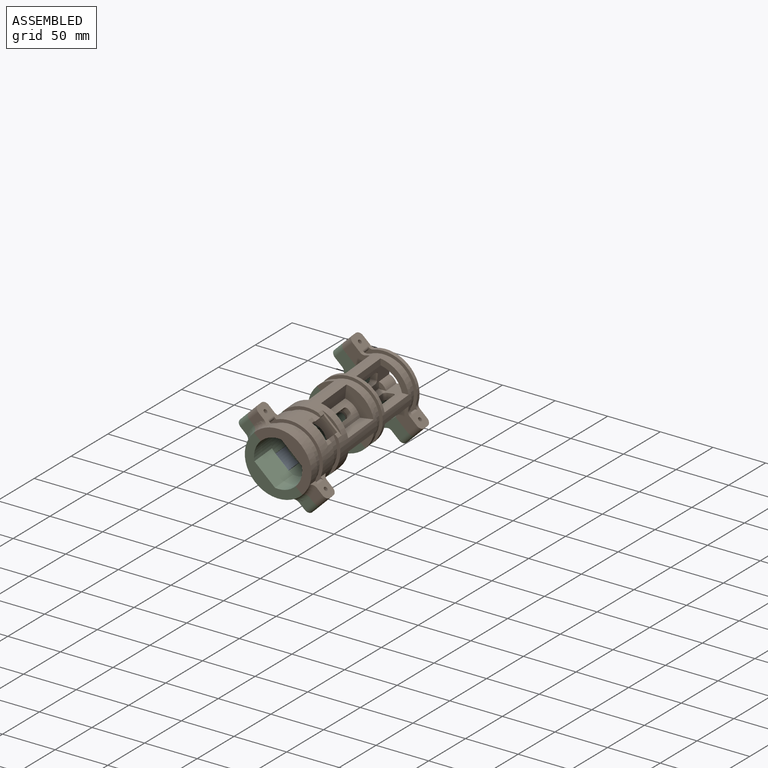
[diagram: assembled view]
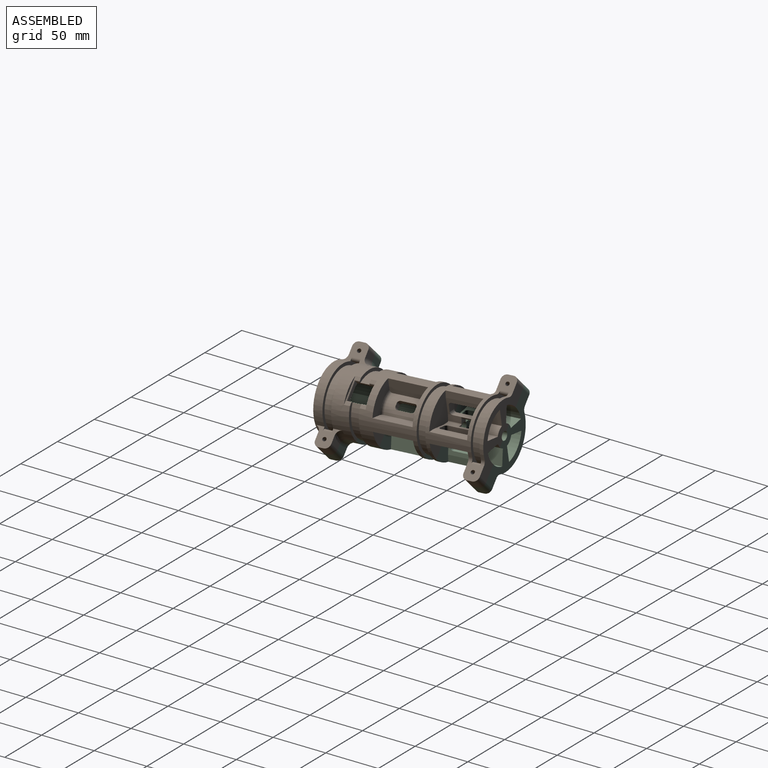
[diagram: assembled view, second angle]
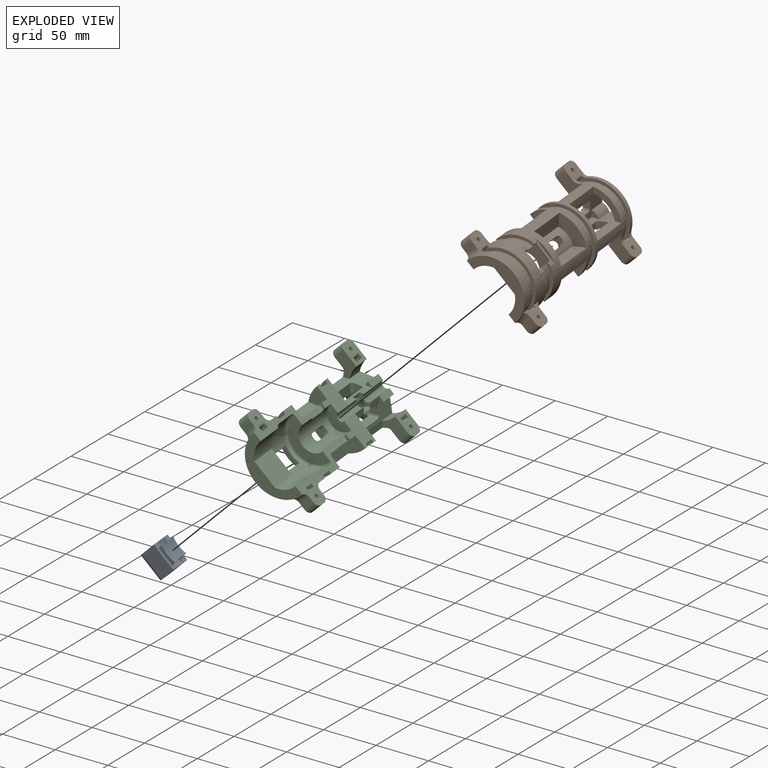
[diagram: exploded view]
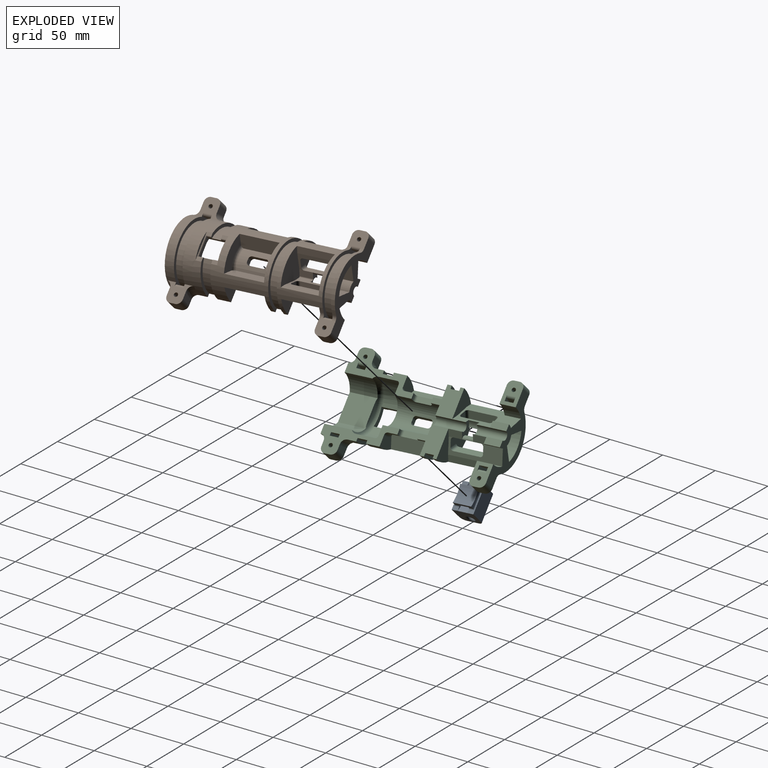
[diagram: exploded view, second angle]
ASSEMBLY  parts=3 mates=2
PART A: 27 faces, bbox 25x20x25 mm
  f0: plane 17x3.81mm, normal (-1,0,0), area 59.6mm2, adj f2,f10,f12,f13,f14,f15,f19,f22
  f1: plane 17x3.81mm, normal (1,0,0), area 59.6mm2, adj f2,f10,f12,f13,f14,f15,f20,f23
  f2: cylinder r=24.68mm len=17mm, axis (0,1,0), area 284mm2, adj f0,f1,f14,f15
  f3: plane 25x15mm, normal (0,-1,0), area 375mm2, adj f6,f8,f9,f18
  f4: plane 25x15mm, normal (0,1,0), area 375mm2, adj f5,f6,f8,f17
  f5: plane 25x5.5mm, normal (0,0,-1), area 45.6mm2, adj f4,f6,f8,f12,f19,f20,f21
  f6: plane 20x20mm, normal (1,0,0), area 285.4mm2, adj f3,f4,f5,f7,f9,f11,f17,f18
  f7: plane 25x10mm, normal (0,0,1), area 250mm2, adj f6,f8,f17,f18
  f8: plane 20x20mm, normal (-1,0,0), area 285.4mm2, adj f3,f4,f5,f7,f9,f11,f17,f18
  f9: plane 25x5.5mm, normal (0,0,-1), area 45.6mm2, adj f3,f6,f8,f13,f22,f23,f24
  f10: cylinder r=27.75mm len=16.39mm, axis (0,-1,0), area 149.7mm2, adj f0,f1,f12,f13
  f11: cylinder r=30.75mm len=25mm, axis (0,-1,0), area 231.7mm2, adj f6,f8,f12,f13
  f12: plane 25x4.24mm, normal (0,-1,0), area 57.4mm2, adj f0,f1,f5,f10,f11,f19,f20
  f13: plane 25x4.24mm, normal (0,1,0), area 57.4mm2, adj f0,f1,f9,f10,f11,f22,f23
  f14: plane 16.39x3.81mm, normal (0,1,0), area 47.1mm2, adj f0,f1,f2,f21
  f15: plane 16.39x3.81mm, normal (0,-1,0), area 47.1mm2, adj f0,f1,f2,f24
  f16: cylinder r=3.25mm len=20mm, axis (1,0,0), area 408.4mm2, adj f25,f26
  f17: cylinder r=5mm len=25mm, axis (-1,0,0), area 196.3mm2, adj f4,f6,f7,f8
  f18: cylinder r=5mm len=25mm, axis (1,0,0), area 196.3mm2, adj f3,f6,f7,f8
  f19: cylinder r=1mm len=5mm, axis (0,-1,0), area 6.9mm2, adj f0,f5,f12,f21
  f20: cylinder r=1mm len=5mm, axis (0,1,0), area 6.9mm2, adj f1,f5,f12,f21
  f21: cylinder r=1mm len=18.39mm, axis (1,0,0), area 26.9mm2, adj f5,f14,f19,f20
  f22: cylinder r=1mm len=5mm, axis (0,-1,0), area 6.9mm2, adj f0,f9,f13,f24
  f23: cylinder r=1mm len=5mm, axis (0,1,0), area 6.9mm2, adj f1,f9,f13,f24
  f24: cylinder r=1mm len=18.39mm, axis (-1,0,0), area 26.9mm2, adj f9,f15,f22,f23
  f25: torus R=5.75mm, axis (-1,0,0), area 102.6mm2, adj f6,f16
  f26: torus R=5.75mm, axis (-1,0,0), area 102.6mm2, adj f8,f16
PART B: 191 faces, bbox 73.8x157.7x73.8 mm
  f0: cylinder r=30.75mm len=53.5mm, axis (0,1,0), area 2317.6mm2, adj f1,f2,f11,f20,f21,f26,f27,f29
  f1: plane 35.89x18.92mm, normal (0.71,0,0.71), area 433.1mm2, adj f0,f22,f28,f33,f35,f47,f55,f57
  f2: plane 35.89x18.92mm, normal (0.71,0,0.71), area 433.1mm2, adj f0,f22,f25,f34,f35,f47,f53,f65
  f3: plane 12.5x6.53mm, normal (1,0,0), area 81.6mm2, adj f5,f9,f56,f183,f187
  f4: plane 12.5x5.52mm, normal (-1,0,0), area 69mm2, adj f8,f10,f51,f183,f187
  f5: plane 27.5x4.24mm, normal (0.71,0,0.71), area 93mm2, adj f3,f6,f9,f48,f56,f187
  f6: cylinder r=4mm len=27.5mm, axis (0,1,0), area 345.6mm2, adj f5,f7,f48,f187
  f7: plane 27.5x4.24mm, normal (0.71,0,0.71), area 93mm2, adj f6,f38,f48,f53,f54,f187
  f8: cylinder r=1mm len=12.5mm, axis (0,1,0), area 19.7mm2, adj f4,f49,f51,f187
  f9: cylinder r=10mm len=20.5mm, axis (0,1,0), area 72.3mm2, adj f3,f5,f36,f48,f56,f182
  f10: cylinder r=10mm len=50mm, axis (0,1,0), area 145.3mm2, adj f4,f39,f41,f48,f49,f51,f60,f171
  f11: plane 17.66x17.66mm, normal (-0.71,0,-0.71), area 37.6mm2, adj f0,f12,f13,f156,f160,f164,f168
  f12: cylinder r=1mm len=5.25mm, axis (0,1,0), area 7.5mm2, adj f11,f16,f160,f168
  f13: cylinder r=1mm len=5.25mm, axis (0,-1,0), area 7.5mm2, adj f11,f18,f160,f164
  f14: cylinder r=30.75mm len=52.49mm, axis (0,1,0), area 631.4mm2, adj f19,f20,f21,f157,f158,f163,f167
  f15: plane 14.75x14.75mm, normal (0,-1,0), area 48.4mm2, adj f16,f18,f67,f160
  f16: plane 17.53x2.87mm, normal (-0.71,0,0.71), area 61.4mm2, adj f12,f15,f17,f67,f76,f159,f166,f167
  f17: plane 14.87x14.87mm, normal (0,1,0), area 51.1mm2, adj f16,f18,f76,f161
  f18: plane 17.53x2.87mm, normal (0.71,0,-0.71), area 61.4mm2, adj f13,f15,f17,f67,f76,f162,f163,f164
  f19: cylinder r=30.75mm len=52.5mm, axis (0,1,0), area 612.2mm2, adj f14,f20,f21,f106,f111,f132,f140,f143
  f20: plane 65.61x23.16mm, normal (0.71,0,0.71), area 668.4mm2, adj f0,f14,f19,f28,f32,f67,f68,f73
  f21: plane 65.61x23.16mm, normal (0.71,0,0.71), area 649.1mm2, adj f0,f14,f19,f25,f32,f67,f68,f71
  f22: cylinder r=30.75mm len=52.49mm, axis (0,1,0), area 1272.7mm2, adj f1,f2,f55,f58,f59,f60,f61,f62
  f23: cylinder r=30.75mm len=39.54mm, axis (0,1,0), area 231.4mm2, adj f48,f123,f144,f146
  f24: cylinder r=24.75mm len=15mm, axis (0,1,0), area 186.7mm2, adj f42,f48,f66,f105
  f25: cylinder r=18mm len=34.5mm, axis (0,1,0), area 279.2mm2, adj f2,f21,f26,f34,f85,f86,f87,f88
  f26: plane 37.08x12.75mm, normal (0.13,0,0.99), area 471.6mm2, adj f0,f25,f34,f97,f100
  f27: plane 37.08x12.75mm, normal (0.99,0,0.13), area 471.6mm2, adj f0,f28,f33,f96,f98
  f28: cylinder r=18mm len=34.5mm, axis (0,1,0), area 279.2mm2, adj f1,f20,f27,f33,f90,f91,f92,f93
  f29: plane 37.08x12.75mm, normal (0.13,0,-0.99), area 471.6mm2, adj f0,f30,f69,f95,f99
  f30: cylinder r=18mm len=34.5mm, axis (0,1,0), area 558.4mm2, adj f29,f31,f69,f77,f78,f79,f80,f81
  f31: plane 37.08x12.75mm, normal (-0.99,0,0.13), area 471.6mm2, adj f0,f30,f69,f95,f99
  f32: plane 37.98x37.98mm, normal (0,-1,0), area 512.2mm2, adj f20,f21,f68,f101
  f33: plane 17.66x17.47mm, normal (0,-1,0), area 180.5mm2, adj f0,f1,f27,f28
  f34: plane 17.66x17.47mm, normal (0,-1,0), area 180.5mm2, adj f0,f2,f25,f26
  f35: plane 22.19x22.19mm, normal (0,-1,0), area 240.3mm2, adj f1,f2,f47,f68
  f36: plane 50.14x14.84mm, normal (0.99,0,0.13), area 416.3mm2, adj f9,f37,f43,f48,f55,f62,f177,f178
  f37: cylinder r=10mm len=4.5mm, axis (0,1,0), area 0.1mm2, adj f36,f55,f57,f184
  f38: cylinder r=10mm len=50mm, axis (0,1,0), area 73.1mm2, adj f7,f42,f48,f53,f54,f65,f171
  f39: plane 50.14x14.84mm, normal (0.13,0,-0.99), area 416.5mm2, adj f10,f44,f48,f58,f60,f169,f170,f172
  f40: cylinder r=10mm len=4.5mm, axis (0,1,0), area 0.1mm2, adj f41,f50,f60,f184
  f41: plane 50.14x14.84mm, normal (-0.99,0,0.13), area 416mm2, adj f10,f40,f44,f48,f59,f60,f177,f178
  f42: plane 50.14x14.84mm, normal (0.13,0,0.99), area 416.3mm2, adj f24,f38,f48,f64,f65,f169,f170,f172
  f43: cylinder r=24.75mm len=15mm, axis (0,1,0), area 186.7mm2, adj f36,f48,f63,f116
  f44: cylinder r=24.75mm len=19.24mm, axis (0,1,0), area 432.1mm2, adj f39,f41,f48,f61
  f45: plane 15x14.9mm, normal (0.71,0,0.71), area 251.1mm2, adj f48,f66,f102,f103,f105,f122,f123,f124
  f46: plane 15x14.9mm, normal (0.71,0,0.71), area 251.1mm2, adj f48,f63,f116,f118,f119,f122,f123,f124
  f47: cylinder r=4mm len=28mm, axis (0,1,0), area 351.9mm2, adj f1,f2,f35,f186
  f48: plane 66.11x66.11mm, normal (0,1,0), area 1155.9mm2, adj f5,f6,f7,f9,f10,f23,f24,f36
  f49: plane 35x5.52mm, normal (0,0,-1), area 164.7mm2, adj f8,f10,f51,f52,f60,f185,f186,f187
  f50: plane 12.5x5.52mm, normal (-1,0,0), area 69mm2, adj f40,f52,f60,f183,f186
  f51: plane 6.53x6.53mm, normal (0,-1,0), area 28.1mm2, adj f4,f8,f10,f49
  f52: cylinder r=1mm len=12.5mm, axis (0,1,0), area 19.7mm2, adj f49,f50,f60,f186
  f53: plane 35x6.53mm, normal (0,0,1), area 189.9mm2, adj f2,f7,f38,f54,f65,f185,f186,f187
  f54: plane 6.53x4.07mm, normal (0,-1,0), area 14.1mm2, adj f7,f38,f53
  f55: plane 27.35x18.76mm, normal (0,1,0), area 256.4mm2, adj f1,f22,f36,f37,f57,f62
  f56: plane 6.53x4.07mm, normal (0,-1,0), area 14.1mm2, adj f3,f5,f9
  f57: plane 12.5x6.53mm, normal (1,0,0), area 81.6mm2, adj f1,f37,f55,f183,f186
  f58: plane 35x6.11mm, normal (0,0,-1), area 213.5mm2, adj f22,f39,f60,f61
  f59: plane 35x6.11mm, normal (-1,0,0), area 213.7mm2, adj f22,f41,f60,f61
  f60: plane 27.36x27.36mm, normal (0,1,0), area 512.7mm2, adj f10,f22,f39,f40,f41,f49,f50,f52
  f61: plane 25.36x25.36mm, normal (0,-1,0), area 201.3mm2, adj f22,f44,f58,f59
  f62: plane 35x6.11mm, normal (1,0,0), area 213.5mm2, adj f22,f36,f55,f63
  f63: plane 23.84x19.87mm, normal (0,-1,0), area 231.9mm2, adj f22,f43,f46,f62,f116,f117,f145,f151
  f64: plane 35x6.11mm, normal (0,0,1), area 213.7mm2, adj f22,f42,f65,f66
  f65: plane 27.36x18.76mm, normal (0,1,0), area 256.4mm2, adj f2,f22,f38,f42,f53,f64
  f66: plane 23.84x19.87mm, normal (0,-1,0), area 231.9mm2, adj f22,f24,f45,f64,f104,f105,f147,f148
  f67: cylinder r=24.75mm len=42.25mm, axis (0,1,0), area 1078.7mm2, adj f15,f16,f18,f20,f21,f76,f101
  f68: cylinder r=13mm len=41.5mm, axis (0,1,0), area 1427.8mm2, adj f1,f2,f20,f21,f32,f35,f77,f78
  f69: plane 26.11x26.11mm, normal (0,-1,0), area 361.1mm2, adj f0,f29,f30,f31
  f70: plane 11.49x11.49mm, normal (0,1,0), area 19.1mm2, adj f74,f76
  f71: cylinder r=22.25mm len=25.67mm, axis (0,1,0), area 538.3mm2, adj f21,f74,f75,f76
  f72: cylinder r=30.75mm len=42.29mm, axis (0,1,0), area 611.6mm2, adj f75,f106,f111,f131
  f73: cylinder r=22.25mm len=25.67mm, axis (0,1,0), area 538.3mm2, adj f20,f74,f75,f76
  f74: plane 26.09x18.92mm, normal (0.71,0,0.71), area 655.9mm2, adj f70,f71,f73,f75,f76
  f75: plane 52.5x52.5mm, normal (0,-1,0), area 783.4mm2, adj f20,f21,f71,f72,f73,f74,f141,f142
  f76: torus R=19.75mm, axis (0,-1,0), area 429.1mm2, adj f16,f17,f18,f20,f21,f67,f70,f71
  f77: cylinder r=2.5mm len=5.71mm, axis (0.71,0,0.71), area 20mm2, adj f30,f68,f78,f84
  f78: plane 5.67x5.67mm, normal (0,1,0), area 15mm2, adj f30,f68,f77,f79
  f79: cylinder r=2.5mm len=5.71mm, axis (0.71,0,0.71), area 20mm2, adj f30,f68,f78,f80
  f80: plane 13x3.66mm, normal (-0.71,0,0.71), area 67.3mm2, adj f30,f68,f79,f81
  f81: cylinder r=2.5mm len=5.71mm, axis (0.71,0,0.71), area 20mm2, adj f30,f68,f80,f82
  f82: plane 5.67x5.67mm, normal (0,-1,0), area 15mm2, adj f30,f68,f81,f83
  f83: cylinder r=2.5mm len=5.71mm, axis (0.71,0,0.71), area 20mm2, adj f30,f68,f82,f84
  f84: plane 13x3.66mm, normal (0.71,0,-0.71), area 67.3mm2, adj f30,f68,f77,f83
  f85: cylinder r=2.5mm len=5.71mm, axis (0.71,0,-0.71), area 20mm2, adj f25,f68,f86,f89
  f86: plane 4.66x4.55mm, normal (0,1,0), area 7.5mm2, adj f21,f25,f68,f85
  f87: plane 4.66x4.55mm, normal (0,-1,0), area 7.5mm2, adj f2,f25,f68,f88
  f88: cylinder r=2.5mm len=5.71mm, axis (0.71,0,-0.71), area 20mm2, adj f25,f68,f87,f89
  f89: plane 13x3.66mm, normal (0.71,0,0.71), area 67.3mm2, adj f25,f68,f85,f88
  f90: plane 4.66x4.55mm, normal (0,-1,0), area 7.5mm2, adj f1,f28,f68,f91
  f91: cylinder r=2.5mm len=5.71mm, axis (0.71,0,-0.71), area 20mm2, adj f28,f68,f90,f94
  f92: cylinder r=2.5mm len=5.71mm, axis (0.71,0,-0.71), area 20mm2, adj f28,f68,f93,f94
  f93: plane 4.66x4.55mm, normal (0,1,0), area 7.5mm2, adj f20,f28,f68,f92
  f94: plane 13x3.66mm, normal (0.71,0,0.71), area 67.3mm2, adj f28,f68,f91,f92
  f95: plane 25.77x25.77mm, normal (0,1,0), area 306.9mm2, adj f0,f29,f31,f99
  f96: plane 17.32x15.7mm, normal (0,1,0), area 153.5mm2, adj f0,f20,f27,f98
  f97: plane 17.32x15.7mm, normal (0,1,0), area 153.5mm2, adj f0,f21,f26,f100
  f98: torus R=20.5mm, axis (0,-1,0), area 41.7mm2, adj f20,f27,f28,f96
  f99: torus R=20.5mm, axis (0,-1,0), area 83.5mm2, adj f29,f30,f31,f95
  f100: torus R=20.5mm, axis (0,-1,0), area 41.7mm2, adj f21,f25,f26,f97
  f101: torus R=22.25mm, axis (0,-1,0), area 294.1mm2, adj f20,f21,f32,f67
  f102: cylinder r=1.88mm len=11.14mm, axis (0.71,0,0.71), area 141.4mm2, adj f45,f104
  f103: plane 8.49x8.49mm, normal (-0.71,0,0.71), area 60mm2, adj f45,f104,f148,f149
  f104: plane 15x10.11mm, normal (-0.71,0,-0.71), area 189.4mm2, adj f48,f66,f102,f103,f123,f124,f136,f144
  f105: plane 15x1.38mm, normal (0.71,0,-0.71), area 29.3mm2, adj f24,f45,f48,f66
  f106: plane 25.64x12.99mm, normal (-0.71,0,-0.71), area 222.9mm2, adj f19,f72,f107,f108,f109,f110,f131,f132
  f107: plane 13.49x12.02mm, normal (0,-1,0), area 68.2mm2, adj f21,f106,f142,f152
  f108: plane 8.49x8.49mm, normal (-0.71,0,0.71), area 60mm2, adj f21,f106,f152,f153
  f109: plane 13.49x12.02mm, normal (0,1,0), area 68.2mm2, adj f21,f106,f143,f153
  f110: cylinder r=1.88mm len=11.14mm, axis (0.71,0,0.71), area 141.4mm2, adj f21,f106
  f111: plane 25.64x12.99mm, normal (-0.71,0,-0.71), area 223mm2, adj f19,f72,f112,f113,f114,f115,f131,f132
  f112: plane 13.49x12.02mm, normal (0,1,0), area 68.2mm2, adj f20,f111,f140,f154
  f113: plane 8.49x8.49mm, normal (0.71,0,-0.71), area 60mm2, adj f20,f111,f154,f155
  f114: plane 13.49x12.02mm, normal (0,-1,0), area 68.2mm2, adj f20,f111,f141,f155
  f115: cylinder r=1.88mm len=11.14mm, axis (0.71,0,0.71), area 141.4mm2, adj f20,f111
  f116: plane 15x1.38mm, normal (-0.71,0,0.71), area 29.3mm2, adj f43,f46,f48,f63
  f117: plane 15x10.11mm, normal (-0.71,0,-0.71), area 189.4mm2, adj f48,f63,f118,f119,f123,f124,f137,f145
  f118: plane 8.49x8.49mm, normal (0.71,0,-0.71), area 60mm2, adj f46,f117,f150,f151
  f119: cylinder r=1.88mm len=11.14mm, axis (0.71,0,0.71), area 141.4mm2, adj f46,f117
  f120: cylinder r=30.75mm len=8mm, axis (0,-1,0), area 52.8mm2, adj f123,f124,f137,f138
  f121: cylinder r=30.75mm len=8mm, axis (0,-1,0), area 52.8mm2, adj f123,f124,f136,f139
  f122: cylinder r=27.75mm len=47.37mm, axis (0,-1,0), area 697.4mm2, adj f45,f46,f123,f124
  f123: plane 54.46x54.46mm, normal (0,-1,0), area 286.8mm2, adj f23,f45,f46,f104,f117,f120,f121,f122
  f124: plane 54.46x54.46mm, normal (0,1,0), area 286.8mm2, adj f22,f45,f46,f104,f117,f120,f121,f122
  f125: cylinder r=27.75mm len=47.37mm, axis (0,1,0), area 697.4mm2, adj f1,f2,f126,f127
  f126: plane 52.49x52.49mm, normal (0,1,0), area 275.7mm2, adj f0,f1,f2,f125
  f127: plane 52.49x52.49mm, normal (0,-1,0), area 275.7mm2, adj f1,f2,f22,f125
  f128: cylinder r=30.75mm len=8mm, axis (0,1,0), area 71.3mm2, adj f20,f131,f132,f133
  f129: cylinder r=30.75mm len=8mm, axis (0,1,0), area 52.8mm2, adj f131,f132,f134,f135
  f130: cylinder r=27.75mm len=47.37mm, axis (0,1,0), area 697.4mm2, adj f20,f21,f131,f132
  f131: plane 54.47x52.77mm, normal (0,1,0), area 282.6mm2, adj f20,f21,f72,f106,f111,f128,f129,f130
  f132: plane 54.47x52.77mm, normal (0,-1,0), area 282.6mm2, adj f19,f20,f21,f106,f111,f128,f129,f130
  f133: cylinder r=2.5mm len=8mm, axis (0,1,0), area 37.2mm2, adj f111,f128,f131,f132
  f134: cylinder r=2.5mm len=8mm, axis (0,1,0), area 37.2mm2, adj f106,f129,f131,f132
  f135: cylinder r=2.5mm len=8mm, axis (0,1,0), area 29.9mm2, adj f21,f129,f131,f132
  f136: cylinder r=2.5mm len=8mm, axis (0,-1,0), area 37.2mm2, adj f104,f121,f123,f124
  f137: cylinder r=2.5mm len=8mm, axis (0,-1,0), area 37.2mm2, adj f117,f120,f123,f124
  f138: cylinder r=2.5mm len=8mm, axis (0,-1,0), area 29.9mm2, adj f46,f120,f123,f124
  f139: cylinder r=2.5mm len=8mm, axis (0,-1,0), area 29.9mm2, adj f45,f121,f123,f124
  f140: torus R=35.75mm, axis (0,1,0), area 94.8mm2, adj f19,f20,f111,f112
  f141: torus R=35.75mm, axis (0,-1,0), area 94.6mm2, adj f20,f75,f111,f114
  f142: torus R=35.75mm, axis (0,-1,0), area 94.6mm2, adj f21,f75,f106,f107
  f143: torus R=35.75mm, axis (0,1,0), area 94.8mm2, adj f19,f21,f106,f109
  f144: cylinder r=5mm len=4.96mm, axis (0,1,0), area 18.8mm2, adj f23,f48,f104,f123
  f145: cylinder r=5mm len=4.96mm, axis (0,1,0), area 18.8mm2, adj f22,f63,f117,f124
  f146: cylinder r=5mm len=4.96mm, axis (0,1,0), area 18.8mm2, adj f23,f48,f117,f123
  f147: cylinder r=5mm len=4.96mm, axis (0,1,0), area 18.8mm2, adj f22,f66,f104,f124
  f148: cylinder r=5mm len=12.02mm, axis (0.71,0,0.71), area 94.2mm2, adj f45,f66,f103,f104
  f149: cylinder r=5mm len=12.02mm, axis (-0.71,0,-0.71), area 94.2mm2, adj f45,f48,f103,f104
  f150: cylinder r=5mm len=12.02mm, axis (0.71,0,0.71), area 94.2mm2, adj f46,f48,f117,f118
  f151: cylinder r=5mm len=12.02mm, axis (-0.71,0,-0.71), area 94.2mm2, adj f46,f63,f117,f118
  f152: cylinder r=5mm len=12.02mm, axis (0.71,0,0.71), area 94.2mm2, adj f21,f106,f107,f108
  f153: cylinder r=5mm len=12.02mm, axis (0.71,0,0.71), area 94.2mm2, adj f21,f106,f108,f109
  f154: cylinder r=5mm len=12.02mm, axis (-0.71,0,-0.71), area 94.2mm2, adj f20,f111,f112,f113
  f155: cylinder r=5mm len=12.02mm, axis (-0.71,0,-0.71), area 94.2mm2, adj f20,f111,f113,f114
  f156: plane 17.66x17.66mm, normal (0,-1,0), area 44.5mm2, adj f0,f11
  f157: plane 17.66x17.66mm, normal (0,1,0), area 44.5mm2, adj f14,f158
  f158: plane 17.66x17.66mm, normal (-0.71,0,-0.71), area 37.6mm2, adj f14,f157,f159,f161,f162,f163,f167
  f159: cylinder r=1mm len=5.25mm, axis (0,1,0), area 7.5mm2, adj f16,f158,f161,f167
  f160: cylinder r=1mm len=14.14mm, axis (-0.71,0,0.71), area 28.3mm2, adj f11,f12,f13,f15
  f161: cylinder r=1mm len=14.14mm, axis (0.71,0,-0.71), area 28.3mm2, adj f17,f158,f159,f162
  f162: cylinder r=1mm len=5.25mm, axis (0,-1,0), area 7.5mm2, adj f18,f158,f161,f163
  f163: plane 35.19x11.13mm, normal (0,1,0), area 108.6mm2, adj f14,f18,f21,f158,f162,f165
  f164: plane 35.19x11.13mm, normal (0,-1,0), area 108.6mm2, adj f0,f11,f13,f18,f21,f165
  f165: cylinder r=27.75mm len=32.29mm, axis (0,1,0), area 314.6mm2, adj f18,f21,f163,f164
  f166: cylinder r=27.75mm len=32.29mm, axis (0,1,0), area 314.6mm2, adj f16,f20,f167,f168
  f167: plane 35.19x11.13mm, normal (0,1,0), area 108.6mm2, adj f14,f16,f20,f158,f159,f166
  f168: plane 35.19x11.13mm, normal (0,-1,0), area 108.6mm2, adj f0,f11,f12,f16,f20,f166
  f169: plane 8.29x5.92mm, normal (0,1,0), area 44.3mm2, adj f39,f42,f170,f176
  f170: cylinder r=2.5mm len=6.68mm, axis (0,0,1), area 24.9mm2, adj f39,f42,f169,f171
  f171: plane 25x6mm, normal (-1,0,0), area 150mm2, adj f10,f38,f170,f172
  f172: cylinder r=2.5mm len=6.68mm, axis (0,0,1), area 24.9mm2, adj f39,f42,f171,f173
  f173: plane 8.29x5.92mm, normal (0,-1,0), area 44.3mm2, adj f39,f42,f172,f174
  f174: cylinder r=2.5mm len=8.97mm, axis (0,0,1), area 33.9mm2, adj f39,f42,f173,f175
  f175: plane 25x8.97mm, normal (1,0,0), area 224.3mm2, adj f39,f42,f174,f176
  f176: cylinder r=2.5mm len=8.97mm, axis (0,0,1), area 33.9mm2, adj f39,f42,f169,f175
  f177: plane 8.29x5.94mm, normal (0,-1,0), area 44.5mm2, adj f36,f41,f181,f182
  f178: plane 8.29x5.94mm, normal (0,1,0), area 44.5mm2, adj f36,f41,f179,f184
  f179: cylinder r=2.5mm len=8.97mm, axis (1,0,0), area 33.9mm2, adj f36,f41,f178,f180
  f180: plane 25x8.97mm, normal (0,0,1), area 224.3mm2, adj f36,f41,f179,f181
  f181: cylinder r=2.5mm len=8.97mm, axis (1,0,0), area 33.9mm2, adj f36,f41,f177,f180
  f182: cylinder r=2.5mm len=6.68mm, axis (1,0,0), area 24.8mm2, adj f9,f10,f36,f41,f177,f183
  f183: plane 25x6.05mm, normal (0,0,-1), area 150.5mm2, adj f3,f4,f50,f57,f182,f184,f186,f187
  f184: cylinder r=2.5mm len=6.68mm, axis (1,0,0), area 24.8mm2, adj f36,f37,f40,f41,f178,f183
  f185: cylinder r=7.5mm len=10mm, axis (0,1,0), area 62.1mm2, adj f49,f53,f186,f187
  f186: plane 12.55x10.53mm, normal (0,1,0), area 48.6mm2, adj f1,f2,f47,f49,f50,f52,f53,f57
  f187: plane 12.55x10.53mm, normal (0,-1,0), area 48.6mm2, adj f3,f4,f5,f6,f7,f8,f49,f53
  f188: cylinder r=7.5mm len=10mm, axis (0,1,0), area 7.9mm2, adj f186,f187,f189,f190
  f189: cylinder r=2.5mm len=10mm, axis (0,1,0), area 36mm2, adj f183,f186,f187,f188
  f190: cylinder r=2.5mm len=10mm, axis (0,1,0), area 36mm2, adj f183,f186,f187,f188
PART C: same geometry as B
PLACE A rot(axis=(0.03,-1,-0.01),134.9deg) t=(23.87,3.61,15.29)mm
PLACE B rot(axis=(0.02,-1,-0.02),179.9deg) t=(19.24,107.92,19.75)mm
PLACE C rot(axis=(0.69,0.03,0.72),3.5deg) t=(19.24,107.92,19.75)mm
MATE planar A.f9 <-> C.f158  axis (0.71,0,0.71) through (4.31,-4.16,-4.88)mm
MATE pin_slot B.f110 <-> C.f115  axis (-0.71,0,-0.71) through (51.95,-18.99,-12.85)mm
